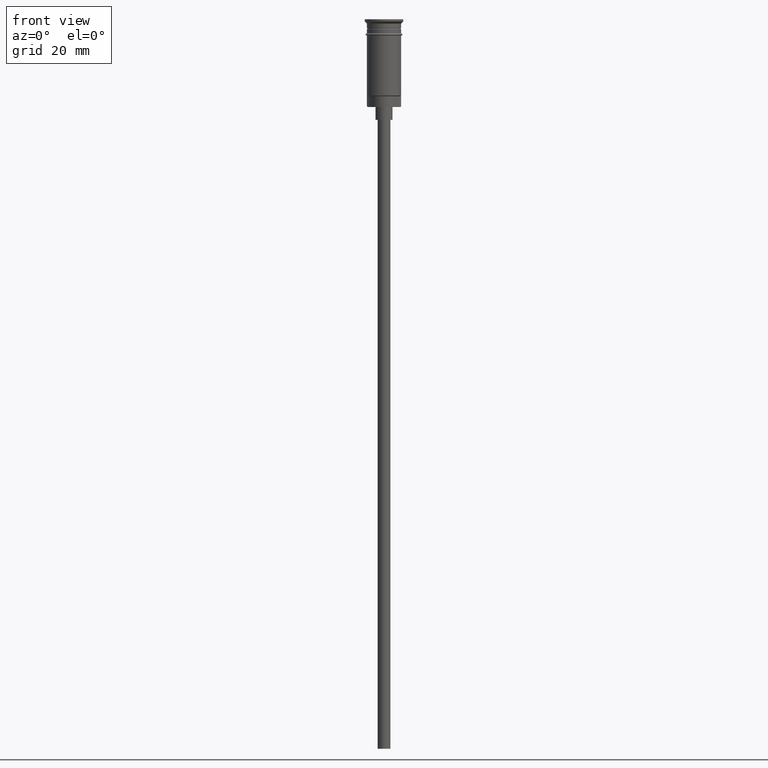
[diagram: clean part render]
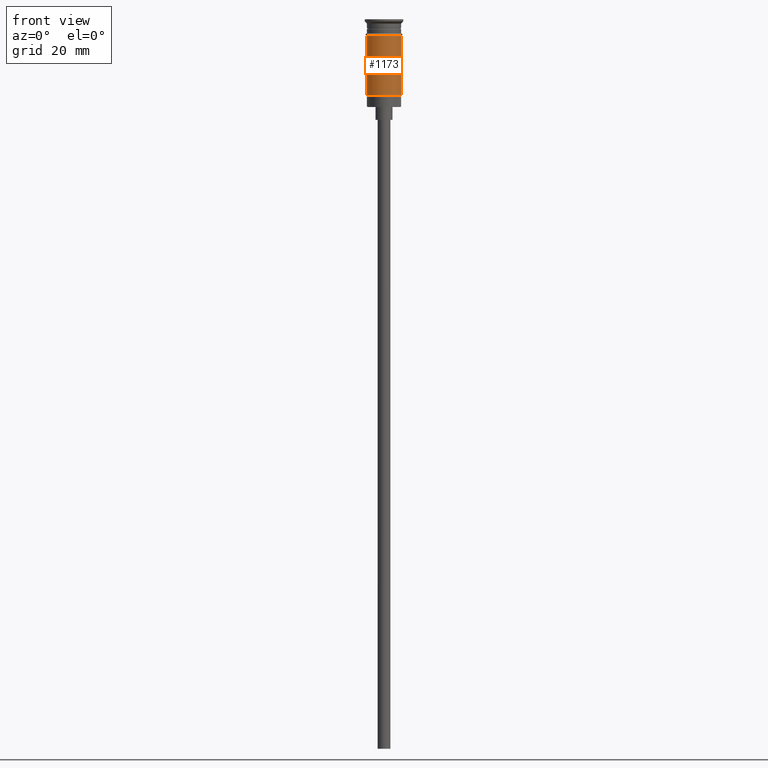
[diagram: same view with one face highlighted and labeled with its STEP entity id]
A machine part, front view. The second image highlights one B-rep face of the part: STEP entity #1173.
In plain terms, the highlighted cylindrical surface (edge-blend (fillet) strip) has radius 4 mm, axis along (-0, -0, 1).
Its self-contained STEP definition (entity closure, byte-faithful):
#78 = EDGE_CURVE ( 'NONE', #1162, #274, #1258, .T. ) ;
#89 = VECTOR ( 'NONE', #155, 1000.000000000000000 ) ;
#155 = DIRECTION ( 'NONE',  ( -0.000000000000000000, -0.000000000000000000, 1.000000000000000000 ) ) ;
#184 = CARTESIAN_POINT ( 'NONE',  ( -3.999999999999997335, 0.000000000000000000, -17.79999999999998295 ) ) ;
#203 = EDGE_LOOP ( 'NONE', ( #459, #250, #236, #1501 ) ) ;
#207 = CYLINDRICAL_SURFACE ( 'NONE', #624, 4.000000000000000000 ) ;
#236 = ORIENTED_EDGE ( 'NONE', *, *, #988, .T. ) ;
#250 = ORIENTED_EDGE ( 'NONE', *, *, #78, .T. ) ;
#274 = VERTEX_POINT ( 'NONE', #1141 ) ;
#307 = DIRECTION ( 'NONE',  ( 1.000000000000000000, 0.000000000000000000, 0.000000000000000000 ) ) ;
#327 = CARTESIAN_POINT ( 'NONE',  ( 0.000000000000000000, 0.000000000000000000, 0.000000000000000000 ) ) ;
#370 = CARTESIAN_POINT ( 'NONE',  ( -4.000000000000000000, 4.898587196589412829E-16, 0.000000000000000000 ) ) ;
#372 = EDGE_CURVE ( 'NONE', #684, #1393, #1018, .T. ) ;
#459 = ORIENTED_EDGE ( 'NONE', *, *, #1390, .F. ) ;
#508 = DIRECTION ( 'NONE',  ( -0.000000000000000000, -0.000000000000000000, 1.000000000000000000 ) ) ;
#539 = DIRECTION ( 'NONE',  ( 1.000000000000000000, 0.000000000000000000, 0.000000000000000000 ) ) ;
#624 = AXIS2_PLACEMENT_3D ( 'NONE', #327, #922, #307 ) ;
#636 = CARTESIAN_POINT ( 'NONE',  ( 4.000000000000000000, 0.000000000000000000, 0.000000000000000000 ) ) ;
#684 = VERTEX_POINT ( 'NONE', #1026 ) ;
#882 = LINE ( 'NONE', #370, #1488 ) ;
#922 = DIRECTION ( 'NONE',  ( -0.000000000000000000, -0.000000000000000000, 1.000000000000000000 ) ) ;
#929 = CARTESIAN_POINT ( 'NONE',  ( 0.000000000000000000, 0.000000000000000000, -3.799999999999998490 ) ) ;
#988 = EDGE_CURVE ( 'NONE', #274, #1393, #1374, .T. ) ;
#1018 = CIRCLE ( 'NONE', #1459, 4.000000000000000000 ) ;
#1026 = CARTESIAN_POINT ( 'NONE',  ( -4.000000000000000000, 4.898587196589412829E-16, -3.799999999999998490 ) ) ;
#1111 = DIRECTION ( 'NONE',  ( -1.000000000000000000, 0.000000000000000000, 0.000000000000000000 ) ) ;
#1141 = CARTESIAN_POINT ( 'NONE',  ( 4.000000000000000000, 4.898587196589412829E-16, -17.79999999999998295 ) ) ;
#1162 = VERTEX_POINT ( 'NONE', #184 ) ;
#1173 = ADVANCED_FACE ( 'NONE', ( #1175 ), #207, .T. ) ;
#1175 = FACE_OUTER_BOUND ( 'NONE', #203, .T. ) ;
#1258 = CIRCLE ( 'NONE', #1344, 4.000000000000000000 ) ;
#1271 = CARTESIAN_POINT ( 'NONE',  ( 4.000000000000000000, 0.000000000000000000, -3.799999999999998490 ) ) ;
#1295 = DIRECTION ( 'NONE',  ( -0.000000000000000000, -0.000000000000000000, 1.000000000000000000 ) ) ;
#1344 = AXIS2_PLACEMENT_3D ( 'NONE', #1460, #1366, #1111 ) ;
#1366 = DIRECTION ( 'NONE',  ( -0.000000000000000000, -0.000000000000000000, 1.000000000000000000 ) ) ;
#1374 = LINE ( 'NONE', #636, #89 ) ;
#1390 = EDGE_CURVE ( 'NONE', #1162, #684, #882, .T. ) ;
#1393 = VERTEX_POINT ( 'NONE', #1271 ) ;
#1459 = AXIS2_PLACEMENT_3D ( 'NONE', #929, #1295, #539 ) ;
#1460 = CARTESIAN_POINT ( 'NONE',  ( 0.000000000000000000, 0.000000000000000000, -17.79999999999998295 ) ) ;
#1488 = VECTOR ( 'NONE', #508, 1000.000000000000000 ) ;
#1501 = ORIENTED_EDGE ( 'NONE', *, *, #372, .F. ) ;